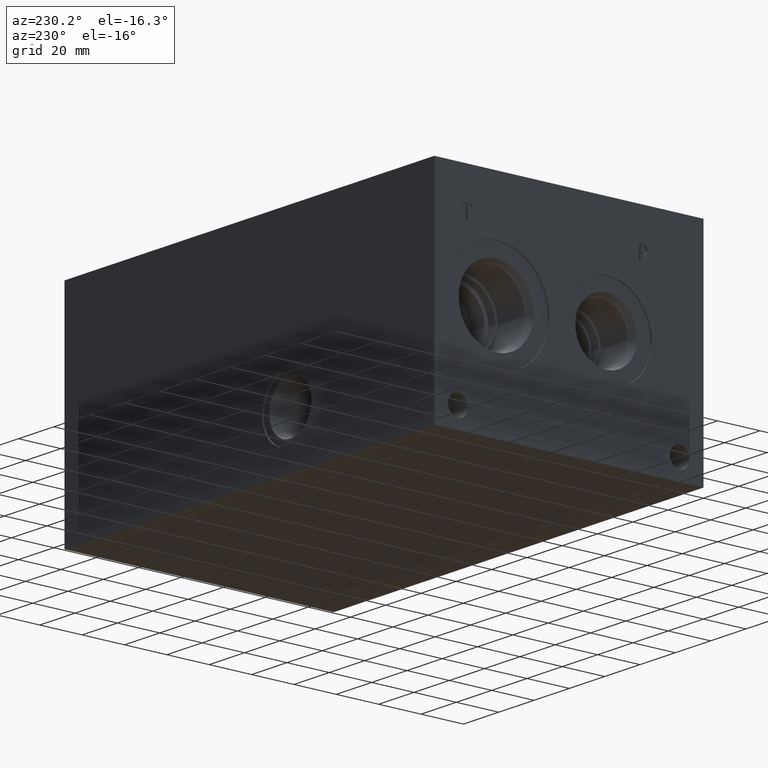
[diagram: clean part render]
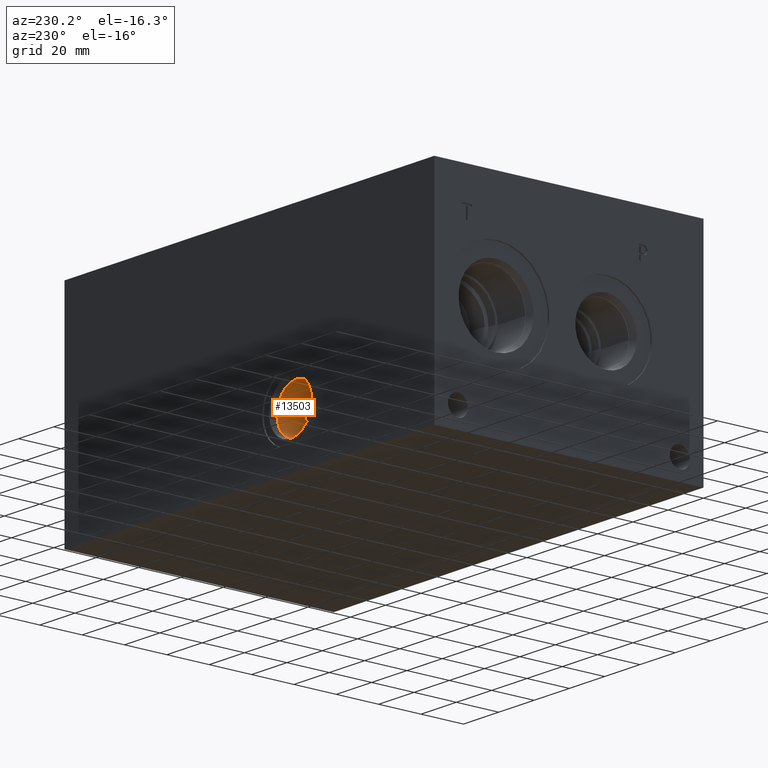
[diagram: same view with one face highlighted and labeled with its STEP entity id]
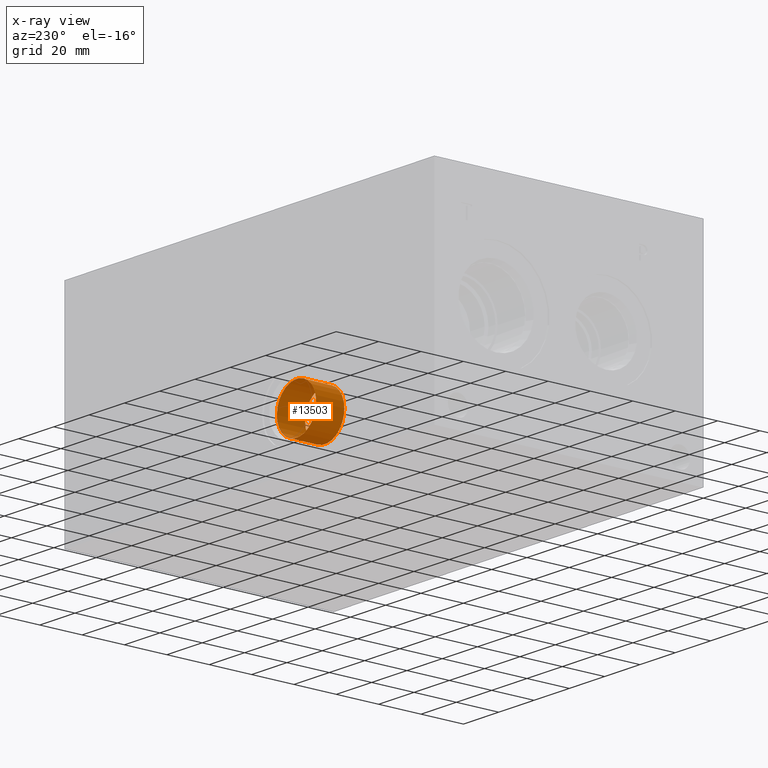
[diagram: x-ray of the same camera — body ghosted, the highlighted face saturated]
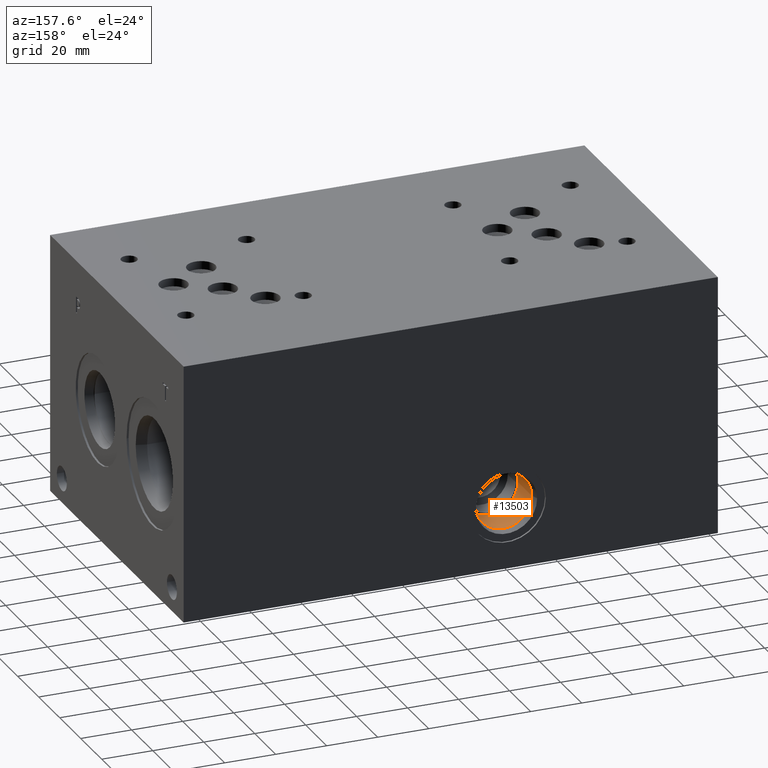
[diagram: same view with one face highlighted and labeled with its STEP entity id]
A machine part, auxiliary view. The second image highlights one B-rep face of the part: STEP entity #13503.
The next image is the same camera in x-ray: the body ghosted, the highlighted face saturated — about 0% of this face is hidden behind the body in this view.
A second angle (auxiliary view) of the same face is appended — the face is thin or edge-on in the first view.
In plain terms, the highlighted cylindrical surface (bore or boss wall) has radius 11.115 mm, axis along (0, -1, 0).
Its self-contained STEP definition (entity closure, byte-faithful):
#94=CYLINDRICAL_SURFACE('',#14344,11.115);
#463=CIRCLE('',#14342,11.115);
#464=CIRCLE('',#14343,11.115);
#465=CIRCLE('',#14345,11.115);
#466=CIRCLE('',#14346,11.115);
#1648=FACE_OUTER_BOUND('',#2437,.T.);
#2437=EDGE_LOOP('',(#12039,#12040,#12041,#12042,#12043,#12044));
#3667=LINE('',#23350,#4874);
#4874=VECTOR('',#17200,11.115);
#6504=VERTEX_POINT('',#23343);
#6505=VERTEX_POINT('',#23345);
#6506=VERTEX_POINT('',#23349);
#6507=VERTEX_POINT('',#23351);
#8371=EDGE_CURVE('',#6504,#6505,#463,.T.);
#8372=EDGE_CURVE('',#6505,#6504,#464,.T.);
#8373=EDGE_CURVE('',#6504,#6506,#3667,.T.);
#8374=EDGE_CURVE('',#6506,#6507,#465,.T.);
#8375=EDGE_CURVE('',#6507,#6506,#466,.T.);
#12039=ORIENTED_EDGE('',*,*,#8372,.F.);
#12040=ORIENTED_EDGE('',*,*,#8371,.F.);
#12041=ORIENTED_EDGE('',*,*,#8373,.T.);
#12042=ORIENTED_EDGE('',*,*,#8374,.T.);
#12043=ORIENTED_EDGE('',*,*,#8375,.T.);
#12044=ORIENTED_EDGE('',*,*,#8373,.F.);
#13503=ADVANCED_FACE('',(#1648),#94,.F.);
#14342=AXIS2_PLACEMENT_3D('',#23346,#17194,#17195);
#14343=AXIS2_PLACEMENT_3D('',#23347,#17196,#17197);
#14344=AXIS2_PLACEMENT_3D('',#23348,#17198,#17199);
#14345=AXIS2_PLACEMENT_3D('',#23352,#17201,#17202);
#14346=AXIS2_PLACEMENT_3D('',#23353,#17203,#17204);
#17194=DIRECTION('center_axis',(0.,-1.,0.));
#17195=DIRECTION('ref_axis',(1.,0.,0.));
#17196=DIRECTION('center_axis',(0.,-1.,0.));
#17197=DIRECTION('ref_axis',(1.,0.,0.));
#17198=DIRECTION('center_axis',(0.,-1.,0.));
#17199=DIRECTION('ref_axis',(1.,0.,0.));
#17200=DIRECTION('',(0.,-1.,0.));
#17201=DIRECTION('center_axis',(0.,-1.,0.));
#17202=DIRECTION('ref_axis',(1.,0.,0.));
#17203=DIRECTION('center_axis',(0.,-1.,0.));
#17204=DIRECTION('ref_axis',(1.,0.,0.));
#23343=CARTESIAN_POINT('',(71.435,123.325,25.4));
#23345=CARTESIAN_POINT('',(93.665,123.325,25.4));
#23346=CARTESIAN_POINT('Origin',(82.55,123.325,25.4));
#23347=CARTESIAN_POINT('Origin',(82.55,123.325,25.4));
#23348=CARTESIAN_POINT('Origin',(82.55,116.6535,25.4));
#23349=CARTESIAN_POINT('',(71.435,109.982,25.4));
#23350=CARTESIAN_POINT('',(71.435,116.6535,25.4));
#23351=CARTESIAN_POINT('',(93.665,109.982,25.4));
#23352=CARTESIAN_POINT('Origin',(82.55,109.982,25.4));
#23353=CARTESIAN_POINT('Origin',(82.55,109.982,25.4));